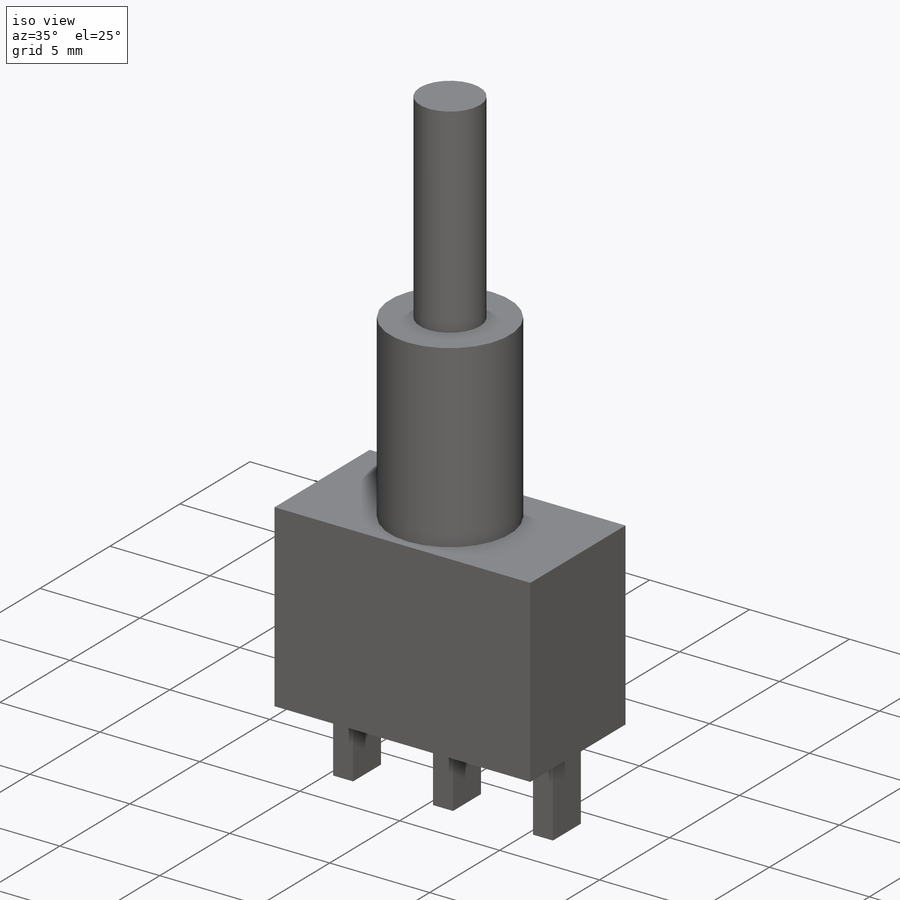
[diagram: iso view]
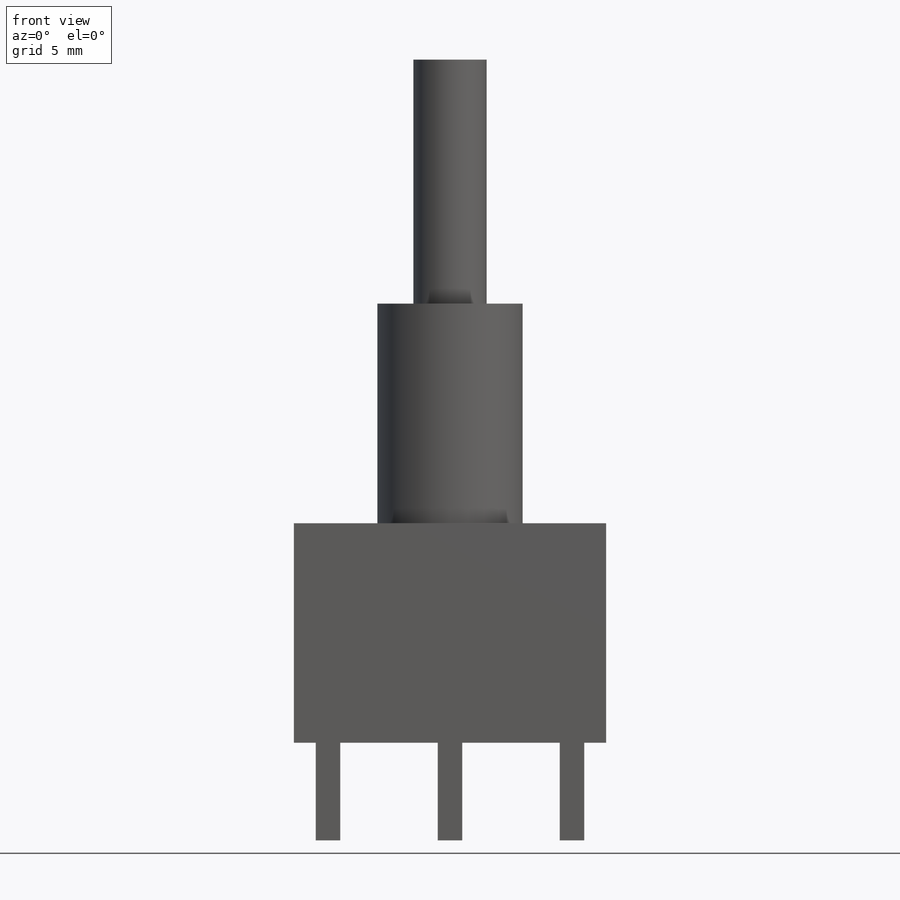
[diagram: front view]
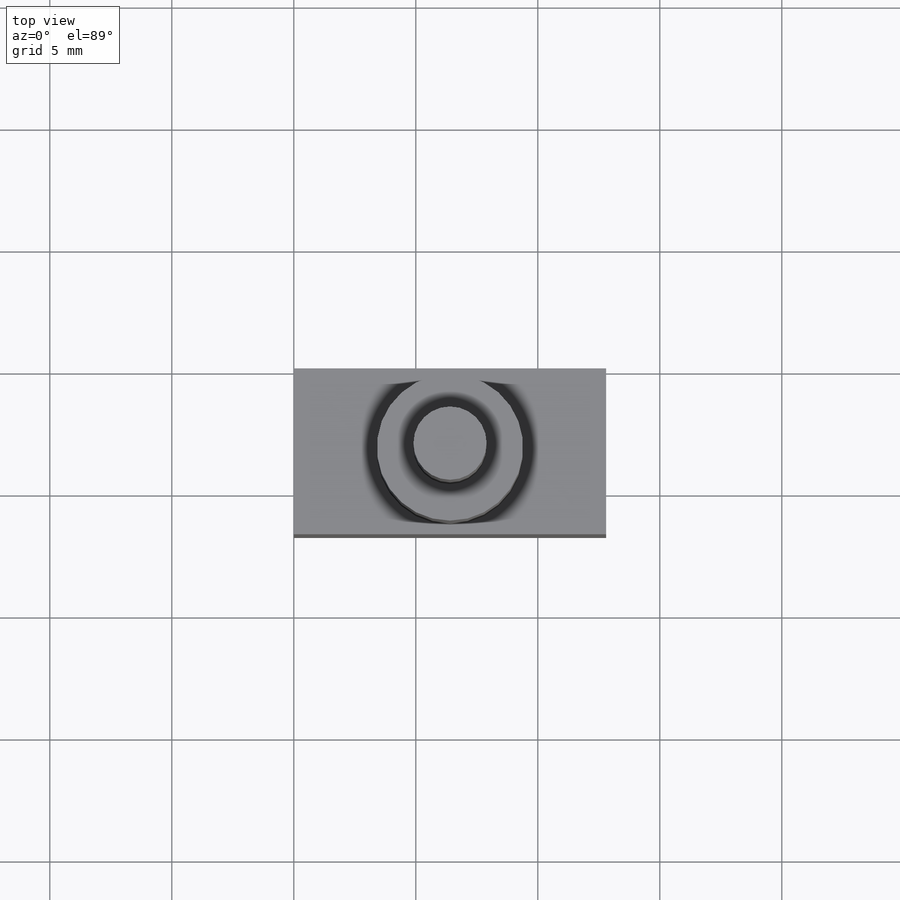
[diagram: top view]
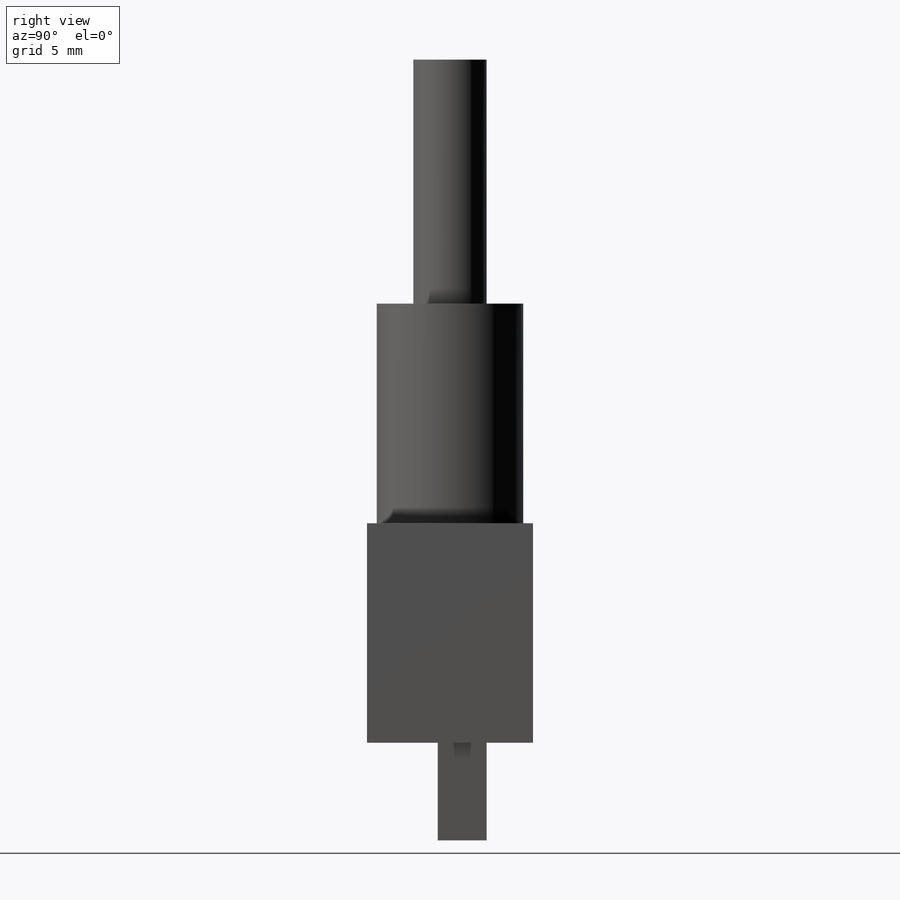
[diagram: right view]
SOLIDWORKS PART (.sldprt)
format: sldprt  version: not decoded by parser v0  size: 154,624 bytes
history: native  units: mm
features: sketch x4, extrude x4, plane x3, material x1 (+10 scaffold rows collapsed)
feature tree (22):
  scaffold x10  (default folders/planes/origin — collapsed)
  material  "Matériau <non spécifié>"
  plane  "Plan de face"
  plane  "Plan de dessus"
  plane  "Plan de droite"
  sketch  "Esquisse1"  dims[D1=12.8mm D2=9.0mm]
  extrude  "Boss.-Extru.1"  Depth=6.8mm
  sketch  "Esquisse2"  dims[c1.D1=1.0mm c1.D2=2.0mm c1.D3=2.9mm c1.D4=2.9mm c1.D5=4.0mm c1.D6=4.0mm c1.D7=0.9mm c1.D8=2.0mm c2.D4=3.0]
  extrude  "Boss.-Extru.2"  Depth=4mm
  sketch  "Esquisse3"  dims[D1=6.0mm D2=3.4mm D3=6.4mm D4=6.8mm]
  extrude  "Boss.-Extru.3"  Depth=9mm
  sketch  "Esquisse4"  dims[3=3.0mm]
  extrude  "Boss.-Extru.4"  Depth=10mm
decode coverage: 8 of 8 modeling features carry decoded parameters
note: suppression state not decoded; provenance and decode notes live in map.json
